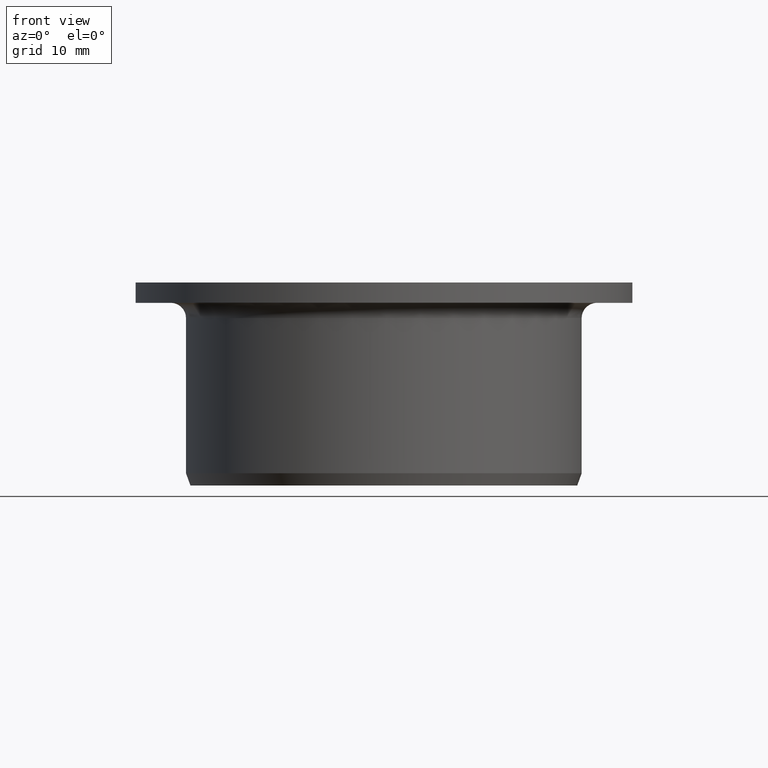
[diagram: clean part render]
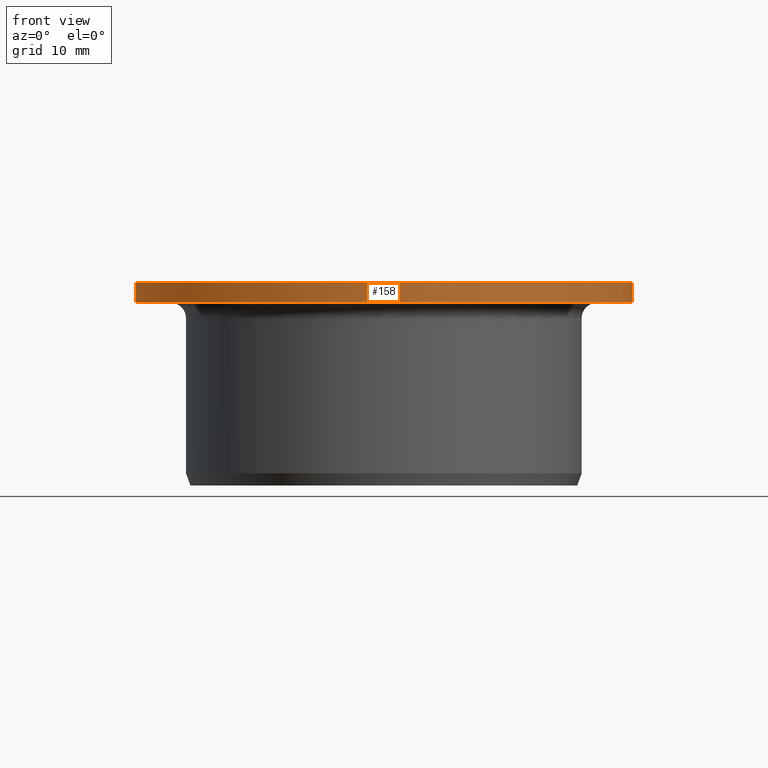
[diagram: same view with one face highlighted and labeled with its STEP entity id]
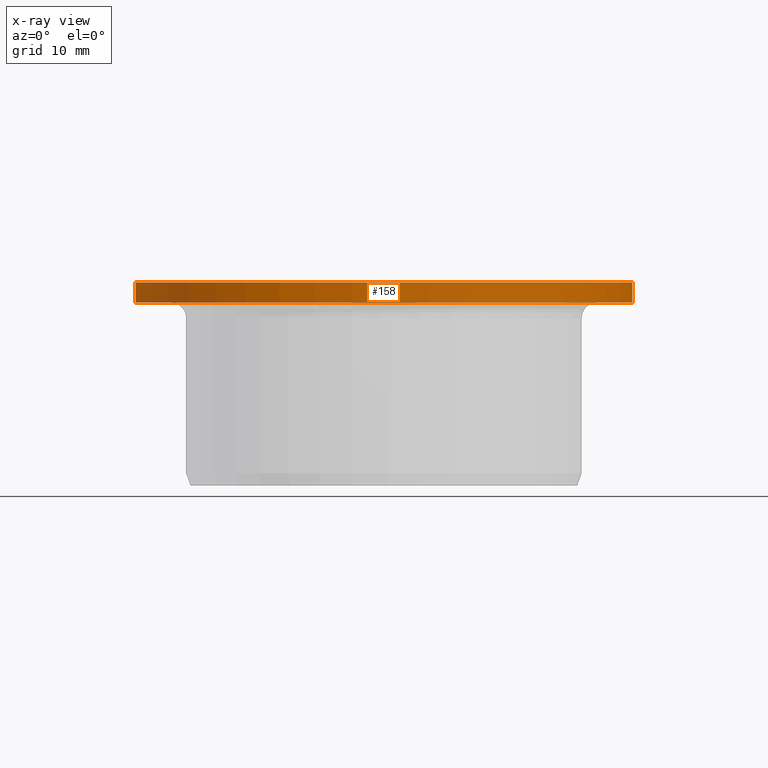
[diagram: x-ray of the same camera — body ghosted, the highlighted face saturated]
A machine part, front view. The second image highlights one B-rep face of the part: STEP entity #158.
The next image is the same camera in x-ray: the body ghosted, the highlighted face saturated — about 0% of this face is hidden behind the body in this view.
In plain terms, the highlighted cylindrical surface (partial cylindrical patch) has radius 24.5 mm, axis along (-0, 0, -1).
Its self-contained STEP definition (entity closure, byte-faithful):
#158=ADVANCED_FACE('',(#177),#178,.T.);
#177=FACE_OUTER_BOUND('',#202,.T.);
#178=CYLINDRICAL_SURFACE('',#203,0.0245);
#202=EDGE_LOOP('',(#257,#258,#259,#260));
#203=AXIS2_PLACEMENT_3D('',#261,#262,#263);
#257=ORIENTED_EDGE('',*,*,#333,.T.);
#258=ORIENTED_EDGE('',*,*,#334,.T.);
#259=ORIENTED_EDGE('',*,*,#331,.F.);
#260=ORIENTED_EDGE('',*,*,#314,.F.);
#261=CARTESIAN_POINT('',(0.0,0.0,0.0));
#262=DIRECTION('',(0.0,-6.12323399573677E-017,-1.0));
#263=DIRECTION('',(0.0,1.0,-6.12323399573677E-017));
#314=EDGE_CURVE('',#345,#347,#348,.T.);
#331=EDGE_CURVE('',#347,#377,#378,.T.);
#333=EDGE_CURVE('',#345,#380,#381,.T.);
#334=EDGE_CURVE('',#380,#377,#382,.T.);
#345=VERTEX_POINT('',#412);
#347=VERTEX_POINT('',#415);
#348=LINE('',#416,#417);
#377=VERTEX_POINT('',#502);
#378=CIRCLE('',#503,0.0245);
#380=VERTEX_POINT('',#506);
#381=CIRCLE('',#507,0.0245);
#382=LINE('',#508,#509);
#412=CARTESIAN_POINT('',(0.0244597654861355,-0.00140352141531771,0.02));
#415=CARTESIAN_POINT('',(0.0244597654861355,-0.00140352141531771,0.018));
#416=CARTESIAN_POINT('',(0.0244597654861355,-0.00140352141531771,1.02020778228383E-020));
#417=VECTOR('',#527,1.0);
#502=CARTESIAN_POINT('',(0.0244597654861355,0.00140352141531772,0.018));
#503=AXIS2_PLACEMENT_3D('',#550,#551,#552);
#506=CARTESIAN_POINT('',(0.0244597654861355,0.00140352141531772,0.02));
#507=AXIS2_PLACEMENT_3D('',#554,#555,#556);
#508=CARTESIAN_POINT('',(0.0244597654861355,0.00140352141531772,-2.07825606336985E-020));
#509=VECTOR('',#557,1.0);
#527=DIRECTION('',(0.0,-6.12323399573677E-017,-1.0));
#550=CARTESIAN_POINT('',(0.0,0.0,0.018));
#551=DIRECTION('',(0.0,-6.12323399573677E-017,-1.0));
#552=DIRECTION('',(0.0,1.0,-6.12323399573677E-017));
#554=CARTESIAN_POINT('',(0.0,0.0,0.02));
#555=DIRECTION('',(0.0,-6.12323399573677E-017,-1.0));
#556=DIRECTION('',(0.0,1.0,-6.12323399573677E-017));
#557=DIRECTION('',(0.0,-6.12323399573677E-017,-1.0));